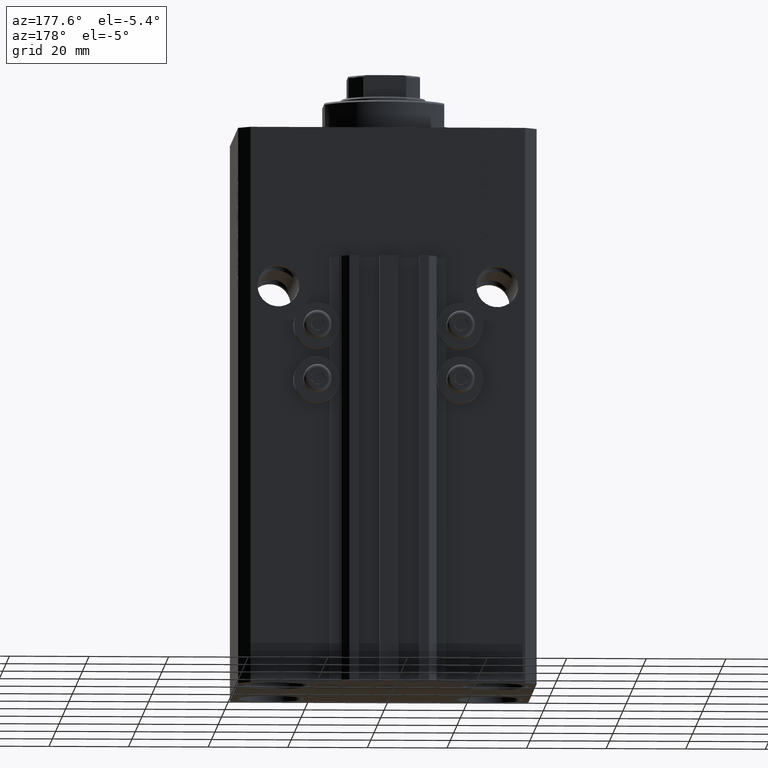
[diagram: clean part render]
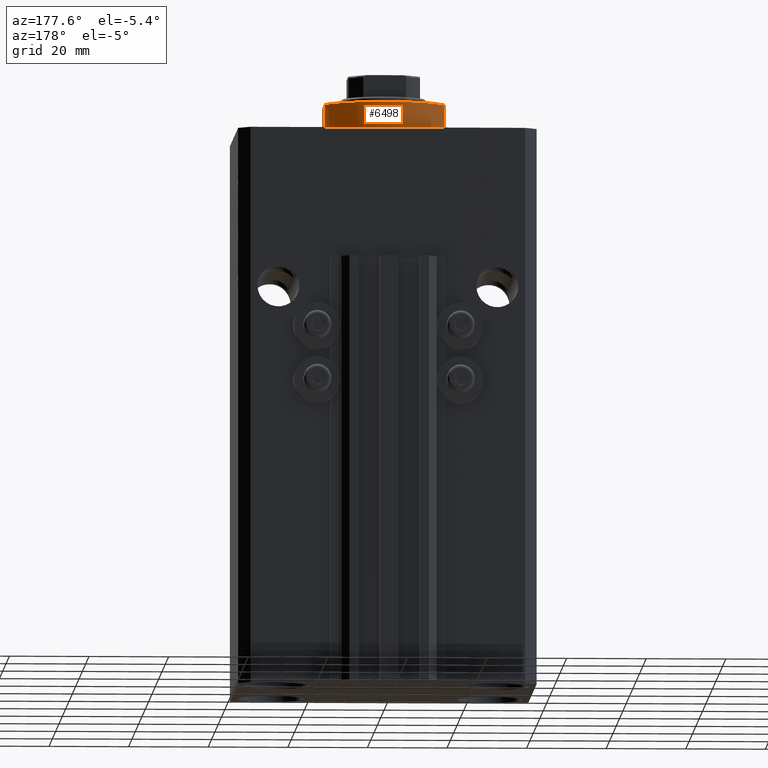
[diagram: same view with one face highlighted and labeled with its STEP entity id]
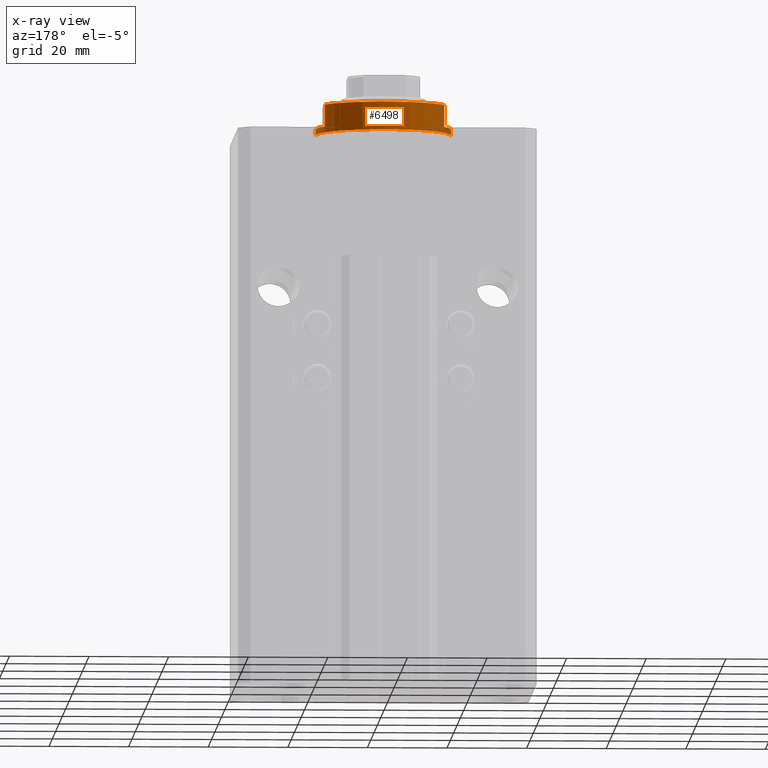
[diagram: x-ray of the same camera — body ghosted, the highlighted face saturated]
A machine part, auxiliary view. The second image highlights one B-rep face of the part: STEP entity #6498.
The next image is the same camera in x-ray: the body ghosted, the highlighted face saturated — about 3% of this face is hidden behind the body in this view.
In plain terms, the highlighted cylindrical surface (partial cylindrical patch) has radius 17 mm, axis along (0, 0, -1).
Its self-contained STEP definition (entity closure, byte-faithful):
#823 = VERTEX_POINT ( 'NONE', #16961 ) ;
#879 = VECTOR ( 'NONE', #37058, 1000.000000000000000 ) ;
#1098 = DIRECTION ( 'NONE',  ( 1.000000000000000000, 0.000000000000000000, 0.000000000000000000 ) ) ;
#1608 = EDGE_LOOP ( 'NONE', ( #20306, #19483, #44172, #43707, #43009, #35534, #3841, #24588 ) ) ;
#2921 = LINE ( 'NONE', #13587, #19719 ) ;
#3820 = AXIS2_PLACEMENT_3D ( 'NONE', #34396, #23052, #27063 ) ;
#3841 = ORIENTED_EDGE ( 'NONE', *, *, #21465, .T. ) ;
#6167 = VERTEX_POINT ( 'NONE', #22269 ) ;
#6206 = DIRECTION ( 'NONE',  ( -0.000000000000000000, -0.000000000000000000, 1.000000000000000000 ) ) ;
#6322 = AXIS2_PLACEMENT_3D ( 'NONE', #18620, #11273, #39927 ) ;
#6498 = ADVANCED_FACE ( 'NONE', ( #46838 ), #11783, .T. ) ;
#7997 = CARTESIAN_POINT ( 'NONE',  ( 0.000000000000000000, 0.000000000000000000, -8.000000000000000000 ) ) ;
#8859 = LINE ( 'NONE', #22612, #879 ) ;
#11273 = DIRECTION ( 'NONE',  ( 0.000000000000000000, 0.000000000000000000, -1.000000000000000000 ) ) ;
#11783 = CYLINDRICAL_SURFACE ( 'NONE', #35975, 17.00000000000000000 ) ;
#13586 = VERTEX_POINT ( 'NONE', #39074 ) ;
#13587 = CARTESIAN_POINT ( 'NONE',  ( -15.00000000000000000, 8.000000000000001776, -8.000000000000000000 ) ) ;
#14244 = CARTESIAN_POINT ( 'NONE',  ( 17.00000000000000000, 0.000000000000000000, -8.000000000000000000 ) ) ;
#15033 = CARTESIAN_POINT ( 'NONE',  ( -15.00000000000000000, 8.000000000000001776, -7.500000000000013323 ) ) ;
#16673 = DIRECTION ( 'NONE',  ( -0.000000000000000000, -0.000000000000000000, 1.000000000000000000 ) ) ;
#16961 = CARTESIAN_POINT ( 'NONE',  ( 17.00000000000000000, 0.000000000000000000, -2.000000000000000000 ) ) ;
#18620 = CARTESIAN_POINT ( 'NONE',  ( 0.000000000000000000, 0.000000000000000000, -2.000000000000000000 ) ) ;
#18651 = DIRECTION ( 'NONE',  ( -0.000000000000000000, -0.000000000000000000, 1.000000000000000000 ) ) ;
#18673 = CARTESIAN_POINT ( 'NONE',  ( 0.000000000000000000, 0.000000000000000000, -2.000000000000000000 ) ) ;
#18995 = VERTEX_POINT ( 'NONE', #28156 ) ;
#19483 = ORIENTED_EDGE ( 'NONE', *, *, #38992, .T. ) ;
#19719 = VECTOR ( 'NONE', #16673, 1000.000000000000000 ) ;
#20306 = ORIENTED_EDGE ( 'NONE', *, *, #27993, .F. ) ;
#20462 = CIRCLE ( 'NONE', #3820, 17.00000000000000000 ) ;
#21128 = EDGE_CURVE ( 'NONE', #32280, #18995, #43152, .T. ) ;
#21465 = EDGE_CURVE ( 'NONE', #6167, #38897, #20462, .T. ) ;
#21650 = EDGE_CURVE ( 'NONE', #6167, #33054, #24723, .T. ) ;
#21996 = DIRECTION ( 'NONE',  ( 0.000000000000000000, 0.000000000000000000, -1.000000000000000000 ) ) ;
#22269 = CARTESIAN_POINT ( 'NONE',  ( 15.00000000000000000, 8.000000000000001776, -7.500000000000013323 ) ) ;
#22612 = CARTESIAN_POINT ( 'NONE',  ( -17.00000000000000000, 2.081899558550500280E-15, -8.000000000000000000 ) ) ;
#22763 = EDGE_CURVE ( 'NONE', #823, #18995, #38650, .T. ) ;
#23052 = DIRECTION ( 'NONE',  ( 0.000000000000000000, 0.000000000000000000, 1.000000000000000000 ) ) ;
#24588 = ORIENTED_EDGE ( 'NONE', *, *, #37616, .T. ) ;
#24723 = LINE ( 'NONE', #38694, #30291 ) ;
#27063 = DIRECTION ( 'NONE',  ( -1.000000000000000000, 0.000000000000000000, 0.000000000000000000 ) ) ;
#27291 = AXIS2_PLACEMENT_3D ( 'NONE', #36848, #29263, #1098 ) ;
#27993 = EDGE_CURVE ( 'NONE', #13586, #31600, #36960, .T. ) ;
#28100 = CARTESIAN_POINT ( 'NONE',  ( -14.99999999999999645, 8.000000000000003553, -2.000000000000000000 ) ) ;
#28156 = CARTESIAN_POINT ( 'NONE',  ( 17.00000000000000000, 0.000000000000000000, -0.5000000000000004441 ) ) ;
#28506 = DIRECTION ( 'NONE',  ( -0.000000000000000000, -0.000000000000000000, 1.000000000000000000 ) ) ;
#29263 = DIRECTION ( 'NONE',  ( -0.000000000000000000, -0.000000000000000000, -1.000000000000000000 ) ) ;
#29575 = VECTOR ( 'NONE', #6206, 1000.000000000000000 ) ;
#30291 = VECTOR ( 'NONE', #28506, 1000.000000000000000 ) ;
#30488 = CIRCLE ( 'NONE', #6322, 17.00000000000000000 ) ;
#31600 = VERTEX_POINT ( 'NONE', #28100 ) ;
#32280 = VERTEX_POINT ( 'NONE', #36720 ) ;
#33054 = VERTEX_POINT ( 'NONE', #33652 ) ;
#33652 = CARTESIAN_POINT ( 'NONE',  ( 14.99999999999999645, 8.000000000000003553, -2.000000000000000000 ) ) ;
#34396 = CARTESIAN_POINT ( 'NONE',  ( 0.000000000000000000, 0.000000000000000000, -7.500000000000013323 ) ) ;
#35534 = ORIENTED_EDGE ( 'NONE', *, *, #21650, .F. ) ;
#35581 = DIRECTION ( 'NONE',  ( -1.000000000000000000, 0.000000000000000000, 0.000000000000000000 ) ) ;
#35975 = AXIS2_PLACEMENT_3D ( 'NONE', #7997, #18651, #36184 ) ;
#36184 = DIRECTION ( 'NONE',  ( 1.000000000000000000, 0.000000000000000000, 0.000000000000000000 ) ) ;
#36720 = CARTESIAN_POINT ( 'NONE',  ( -17.00000000000000000, 2.081899558550500280E-15, -0.5000000000000004441 ) ) ;
#36848 = CARTESIAN_POINT ( 'NONE',  ( 0.000000000000000000, 0.000000000000000000, -0.5000000000000004441 ) ) ;
#36960 = CIRCLE ( 'NONE', #46002, 17.00000000000000000 ) ;
#37058 = DIRECTION ( 'NONE',  ( -0.000000000000000000, -0.000000000000000000, 1.000000000000000000 ) ) ;
#37616 = EDGE_CURVE ( 'NONE', #38897, #31600, #2921, .T. ) ;
#38650 = LINE ( 'NONE', #14244, #29575 ) ;
#38694 = CARTESIAN_POINT ( 'NONE',  ( 15.00000000000000000, 8.000000000000001776, -8.000000000000000000 ) ) ;
#38897 = VERTEX_POINT ( 'NONE', #15033 ) ;
#38992 = EDGE_CURVE ( 'NONE', #13586, #32280, #8859, .T. ) ;
#39074 = CARTESIAN_POINT ( 'NONE',  ( -17.00000000000000000, 2.081899558550500280E-15, -2.000000000000000000 ) ) ;
#39927 = DIRECTION ( 'NONE',  ( -1.000000000000000000, 0.000000000000000000, 0.000000000000000000 ) ) ;
#43009 = ORIENTED_EDGE ( 'NONE', *, *, #43168, .F. ) ;
#43152 = CIRCLE ( 'NONE', #27291, 17.00000000000000000 ) ;
#43168 = EDGE_CURVE ( 'NONE', #33054, #823, #30488, .T. ) ;
#43707 = ORIENTED_EDGE ( 'NONE', *, *, #22763, .F. ) ;
#44172 = ORIENTED_EDGE ( 'NONE', *, *, #21128, .T. ) ;
#46002 = AXIS2_PLACEMENT_3D ( 'NONE', #18673, #21996, #35581 ) ;
#46838 = FACE_OUTER_BOUND ( 'NONE', #1608, .T. ) ;